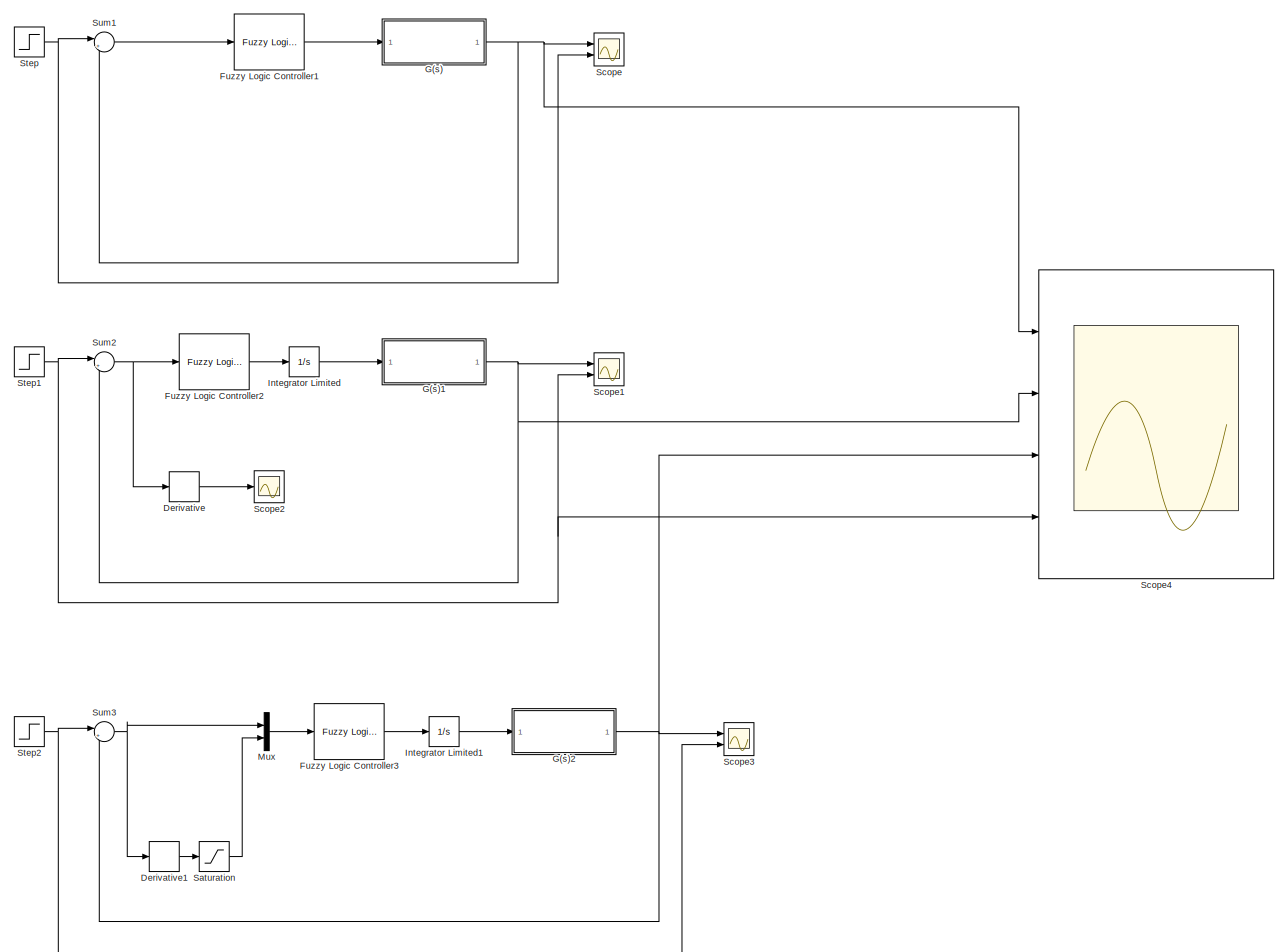
[diagram: root canvas - part 1/1, most of the canvas]
MODEL slx_5aac1e2492fd
KIND model
CONFIG AbsTol = auto
CONFIG EnableMultiTasking = off
CONFIG FixedStep = 1
CONFIG MaxStep = auto
CONFIG MinStep = auto
CONFIG RelTol = 1e-3
CONFIG SampleTimeConstraint = Unconstrained
CONFIG Solver = FixedStepAuto
CONFIG SolverName = FixedStepAuto
CONFIG StartTime = 0.0
CONFIG StopTime = 3600
BLOCK [Derivative] Derivative
BLOCK [Derivative] Derivative1
BLOCK [Reference] Fuzzy Logic Controller1  REF=fuzblock/Fuzzy Logic   (lib defined in mdl_858b3b3e7478)
Controller
  Ports = [1, 1]
  SourceBlock = fuzblock/Fuzzy Logic \nController
  SourceProductBaseCode = FL
  SourceProductName = Fuzzy Logic Toolbox
  SourceType = Fuzzy Inference System
BLOCK [Reference] Fuzzy Logic Controller2  REF=fuzblock/Fuzzy Logic   (lib defined in mdl_858b3b3e7478)
Controller
  Ports = [1, 1]
  SourceBlock = fuzblock/Fuzzy Logic \nController
  SourceProductBaseCode = FL
  SourceProductName = Fuzzy Logic Toolbox
  SourceType = Fuzzy Inference System
BLOCK [Reference] Fuzzy Logic Controller3  REF=fuzblock/Fuzzy Logic   (lib defined in mdl_858b3b3e7478)
Controller
  Ports = [1, 1]
  SourceBlock = fuzblock/Fuzzy Logic \nController
  SourceProductBaseCode = FL
  SourceProductName = Fuzzy Logic Toolbox
  SourceType = Fuzzy Inference System
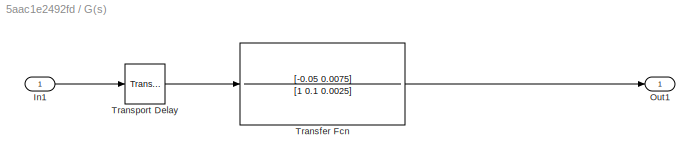
BLOCK [SubSystem] G(s)
  Ports = [1, 1]
  RequestExecContextInheritance = off
BLOCK [Inport] G(s)/In1
  IconDisplay = Port number
BLOCK [Outport] G(s)/Out1
  IconDisplay = Port number
BLOCK [TransferFcn] G(s)/Transfer Fcn
  Denominator = [1 0.1 0.0025]
  Numerator = [-0.05 0.0075]
BLOCK [TransportDelay] G(s)/Transport Delay
  DelayTime = 3.6
  Ports = [1, 1]
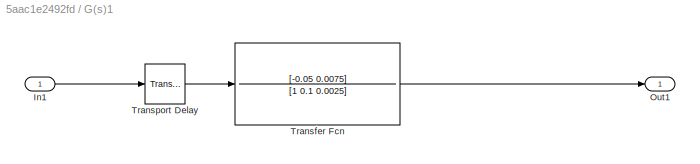
BLOCK [SubSystem] G(s)1
  Ports = [1, 1]
  RequestExecContextInheritance = off
BLOCK [Inport] G(s)1/In1
  IconDisplay = Port number
BLOCK [Outport] G(s)1/Out1
  IconDisplay = Port number
BLOCK [TransferFcn] G(s)1/Transfer Fcn
  Denominator = [1 0.1 0.0025]
  Numerator = [-0.05 0.0075]
BLOCK [TransportDelay] G(s)1/Transport Delay
  DelayTime = 3.6
  Ports = [1, 1]
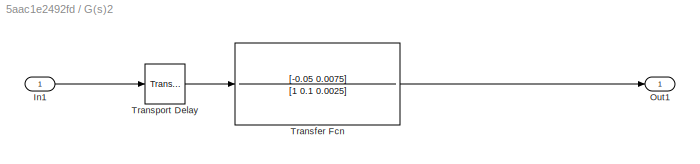
BLOCK [SubSystem] G(s)2
  Ports = [1, 1]
  RequestExecContextInheritance = off
BLOCK [Inport] G(s)2/In1
  IconDisplay = Port number
BLOCK [Outport] G(s)2/Out1
  IconDisplay = Port number
BLOCK [TransferFcn] G(s)2/Transfer Fcn
  Denominator = [1 0.1 0.0025]
  Numerator = [-0.05 0.0075]
BLOCK [TransportDelay] G(s)2/Transport Delay
  DelayTime = 3.6
  Ports = [1, 1]
BLOCK [Integrator] Integrator Limited
  LimitOutput = on
  LowerSaturationLimit = -1.2
  Ports = [1, 1]
  UpperSaturationLimit = 1.2
BLOCK [Integrator] Integrator Limited1
  LimitOutput = on
  LowerSaturationLimit = -1.2
  Ports = [1, 1]
  UpperSaturationLimit = 1.2
BLOCK [Mux] Mux
  DisplayOption = bar
  Inputs = 2
  Ports = [2, 1]
BLOCK [Saturate] Saturation
  InputPortMap = u0
  Ports = [1, 1]
BLOCK [Scope] Scope
  Floating = off
  NumInputPorts = 2
  Ports = [2]
  ScopeSpecificationString = Simulink.scopes.TimeScopeBlockCfg('CurrentConfiguration', extmgr.ConfigurationSet(extmgr.Configuration('Core','General UI',true),extmgr.Configuration('Core','Source UI',true),extmgr.Configuration('Sources','WiredSimulink',true),extmgr.Configuration('Visuals','Time Domain',true,'SerializedDisplays',{struct('MinYLimReal','-0.19178','MaxYLimReal','1.13242','YLabelReal','','MinYLimMag','0.00000','MaxY...<+1331ch>
BLOCK [Scope] Scope1
  Floating = off
  NumInputPorts = 2
  Ports = [2]
  ScopeSpecificationString = Simulink.scopes.TimeScopeBlockCfg('CurrentConfiguration', extmgr.ConfigurationSet(extmgr.Configuration('Core','General UI',true),extmgr.Configuration('Core','Source UI',true),extmgr.Configuration('Sources','WiredSimulink',true,'DataLoggingVariableName','ScopeData1'),extmgr.Configuration('Visuals','Time Domain',true,'SerializedDisplays',{struct('MinYLimReal','-3.97451','MaxYLimReal','3.59152','YLab...<+1401ch>
BLOCK [Scope] Scope2
  Floating = off
  NumInputPorts = 1
  Ports = [1]
  ScopeSpecificationString = Simulink.scopes.TimeScopeBlockCfg('CurrentConfiguration', extmgr.ConfigurationSet(extmgr.Configuration('Core','General UI',true),extmgr.Configuration('Core','Source UI',true),extmgr.Configuration('Sources','WiredSimulink',true,'DataLoggingVariableName','ScopeData2'),extmgr.Configuration('Visuals','Time Domain',true,'SerializedDisplays',{struct('MinYLimReal','-0.09467','MaxYLimReal','0.19757','YLab...<+1388ch>
BLOCK [Scope] Scope3
  Floating = off
  NumInputPorts = 2
  Ports = [2]
  ScopeSpecificationString = Simulink.scopes.TimeScopeBlockCfg('CurrentConfiguration', extmgr.ConfigurationSet(extmgr.Configuration('Core','General UI',true),extmgr.Configuration('Core','Source UI',true),extmgr.Configuration('Sources','WiredSimulink',true,'DataLoggingVariableName','ScopeData3'),extmgr.Configuration('Visuals','Time Domain',true,'SerializedDisplays',{struct('MinYLimReal','-3.28952','MaxYLimReal','3.72701','YLab...<+1399ch>
BLOCK [Scope] Scope4
  Floating = off
  NumInputPorts = 4
  Ports = [4]
  ScopeSpecificationString = Simulink.scopes.TimeScopeBlockCfg('CurrentConfiguration', extmgr.ConfigurationSet(extmgr.Configuration('Core','General UI',true),extmgr.Configuration('Core','Source UI',true),extmgr.Configuration('Sources','WiredSimulink',true,'DataLoggingVariableName','ScopeData4'),extmgr.Configuration('Visuals','Time Domain',true,'SerializedDisplays',{struct('MinYLimReal','-3.59152','MaxYLimReal','3.97451','YLab...<+1414ch>
BLOCK [Step] Step
  After = 2
  Before = -2
  SampleTime = 0
  Time = 1000
BLOCK [Step] Step1
  After = 2
  Before = -2
  SampleTime = 0
  Time = 300
BLOCK [Step] Step2
  After = 2
  Before = -2
  SampleTime = 0
  Time = 300
BLOCK [Sum] Sum1
  IconShape = round
  InputSameDT = off
  Inputs = |+-
  OutDataTypeStr = Inherit: Inherit via internal rule
  Ports = [2, 1]
  SaturateOnIntegerOverflow = off
BLOCK [Sum] Sum2
  IconShape = round
  InputSameDT = off
  Inputs = |+-
  OutDataTypeStr = Inherit: Inherit via internal rule
  Ports = [2, 1]
  SaturateOnIntegerOverflow = off
BLOCK [Sum] Sum3
  IconShape = round
  InputSameDT = off
  Inputs = |+-
  OutDataTypeStr = Inherit: Inherit via internal rule
  Ports = [2, 1]
  SaturateOnIntegerOverflow = off
LINE Derivative1:1 -> Saturation:1
LINE Derivative:1 -> Scope2:1
LINE Fuzzy Logic Controller1:1 -> G(s):1
LINE Fuzzy Logic Controller2:1 -> Integrator Limited:1
LINE Fuzzy Logic Controller3:1 -> Integrator Limited1:1
LINE G(s)/In1:1 -> G(s)/Transport Delay:1
LINE G(s)/Transfer Fcn:1 -> G(s)/Out1:1
LINE G(s)/Transport Delay:1 -> G(s)/Transfer Fcn:1
LINE G(s)1/In1:1 -> G(s)1/Transport Delay:1
LINE G(s)1/Transfer Fcn:1 -> G(s)1/Out1:1
LINE G(s)1/Transport Delay:1 -> G(s)1/Transfer Fcn:1
NET G(s)1:1 -> Scope1:1, Scope4:2, Sum2:2
LINE G(s)2/In1:1 -> G(s)2/Transport Delay:1
LINE G(s)2/Transfer Fcn:1 -> G(s)2/Out1:1
LINE G(s)2/Transport Delay:1 -> G(s)2/Transfer Fcn:1
NET G(s)2:1 -> Scope3:1, Scope4:3, Sum3:2
NET G(s):1 -> Scope4:1, Scope:1, Sum1:2
LINE Integrator Limited1:1 -> G(s)2:1
LINE Integrator Limited:1 -> G(s)1:1
LINE Mux:1 -> Fuzzy Logic Controller3:1
LINE Saturation:1 -> Mux:2
NET Step1:1 -> Scope1:2, Scope4:4, Sum2:1
NET Step2:1 -> Scope3:2, Sum3:1
NET Step:1 -> Scope:2, Sum1:1
LINE Sum1:1 -> Fuzzy Logic Controller1:1
NET Sum2:1 -> Derivative:1, Fuzzy Logic Controller2:1
NET Sum3:1 -> Derivative1:1, Mux:1
note: NET lines group one-source signal fan-out (src -> all destinations, sorted); 1:1 wires keep LINE
